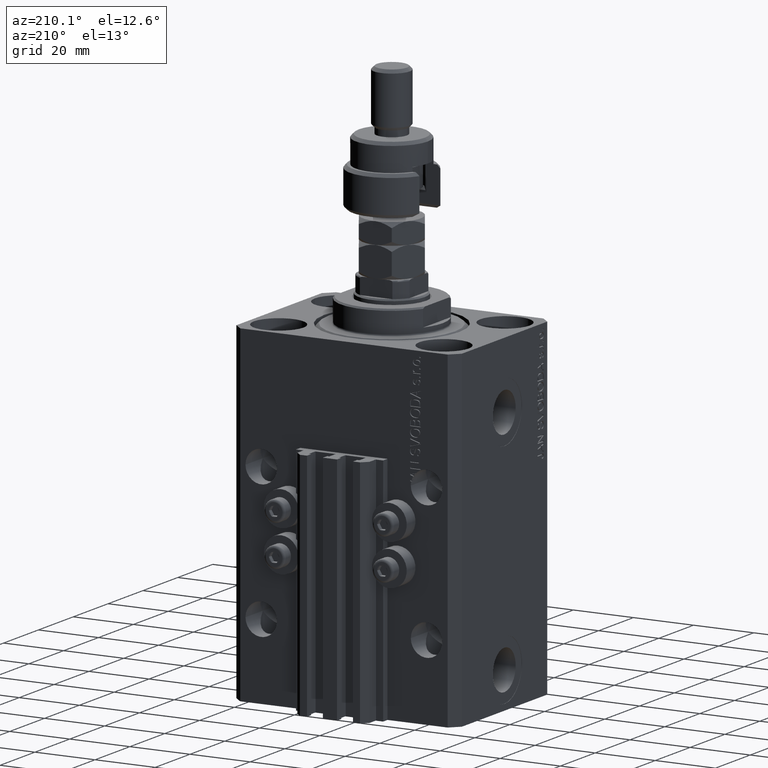
[diagram: clean part render]
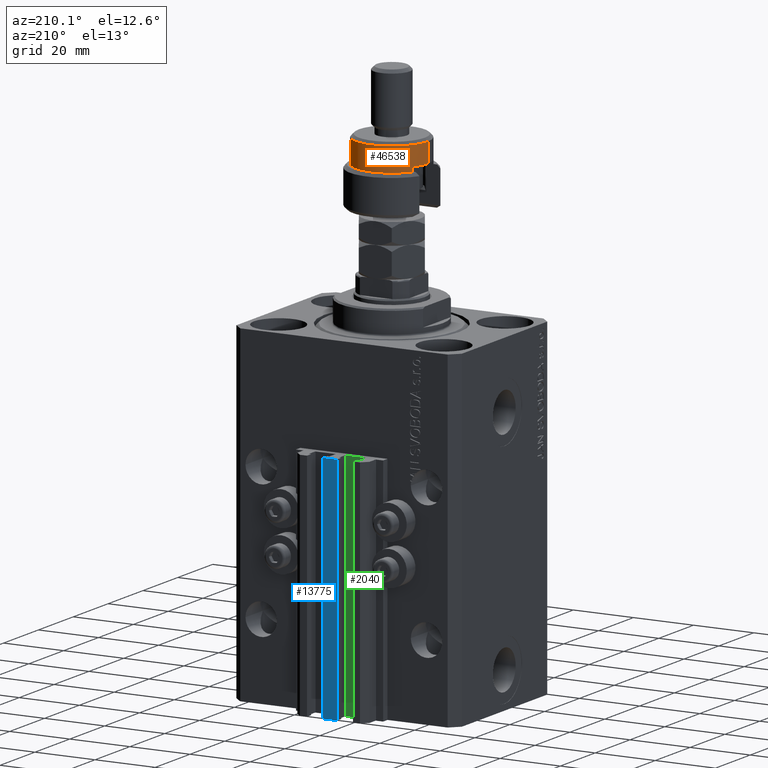
[diagram: same view with three faces highlighted in distinct colors, each labeled with its STEP entity id]
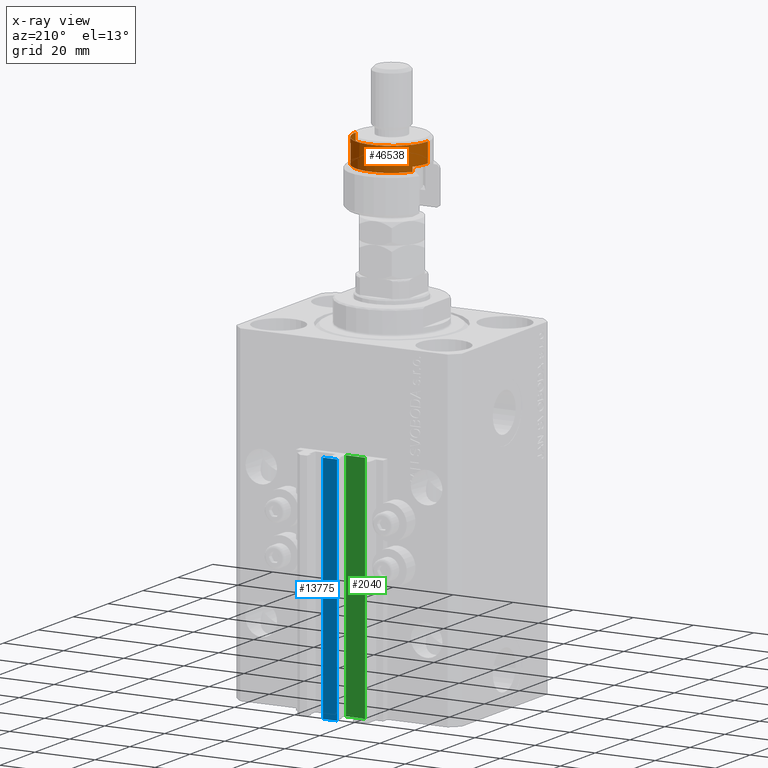
[diagram: x-ray of the same camera — body ghosted, the three highlighted faces saturated]
A machine part, auxiliary view with three faces highlighted in distinct colors.
The next image is the same camera in x-ray (body ghosted, the three faces saturated) — at least one of them is partly hidden behind the body in this view.
Their STEP definitions:

[orange] entity #46538 — the highlighted cylindrical surface (partial cylindrical patch) has radius 12 mm, axis along (-0, -0, -1).
#24 = CARTESIAN_POINT ( 'NONE',  ( 0.000000000000000000, 0.000000000000000000, 20.99999999999998224 ) ) ;
#1229 = EDGE_CURVE ( 'NONE', #25745, #50214, #32743, .T. ) ;
#2160 = CIRCLE ( 'NONE', #45921, 12.00000000000000178 ) ;
#2294 = LINE ( 'NONE', #6590, #25158 ) ;
#3581 = AXIS2_PLACEMENT_3D ( 'NONE', #33004, #29215, #41125 ) ;
#5243 = CARTESIAN_POINT ( 'NONE',  ( -12.00000000000000178, 0.000000000000000000, 22.00000000000000000 ) ) ;
#6590 = CARTESIAN_POINT ( 'NONE',  ( -10.39230484541326760, 6.000000000000000000, 22.00000000000000000 ) ) ;
#6654 = DIRECTION ( 'NONE',  ( 1.000000000000000000, 0.000000000000000000, 0.000000000000000000 ) ) ;
#7684 = DIRECTION ( 'NONE',  ( -0.000000000000000000, -0.000000000000000000, -1.000000000000000000 ) ) ;
#8329 = CARTESIAN_POINT ( 'NONE',  ( 12.00000000000000178, 1.469576158976824144E-15, 22.00000000000000000 ) ) ;
#8613 = DIRECTION ( 'NONE',  ( 1.000000000000000000, 0.000000000000000000, 0.000000000000000000 ) ) ;
#12901 = ORIENTED_EDGE ( 'NONE', *, *, #47578, .T. ) ;
#14238 = AXIS2_PLACEMENT_3D ( 'NONE', #24, #42869, #8613 ) ;
#14798 = VECTOR ( 'NONE', #20963, 1000.000000000000000 ) ;
#15645 = CARTESIAN_POINT ( 'NONE',  ( -12.00000000000000178, 0.000000000000000000, 14.50000000000000000 ) ) ;
#15863 = ORIENTED_EDGE ( 'NONE', *, *, #45617, .T. ) ;
#15888 = AXIS2_PLACEMENT_3D ( 'NONE', #22673, #7684, #26738 ) ;
#15978 = CIRCLE ( 'NONE', #14238, 12.00000000000000178 ) ;
#16027 = VERTEX_POINT ( 'NONE', #30858 ) ;
#17822 = CARTESIAN_POINT ( 'NONE',  ( 0.000000000000000000, 0.000000000000000000, 13.00000000000000000 ) ) ;
#18628 = CYLINDRICAL_SURFACE ( 'NONE', #15888, 12.00000000000000178 ) ;
#19072 = CARTESIAN_POINT ( 'NONE',  ( 12.00000000000000178, 1.469576158976824144E-15, 20.99999999999998224 ) ) ;
#19086 = VERTEX_POINT ( 'NONE', #19072 ) ;
#20963 = DIRECTION ( 'NONE',  ( -0.000000000000000000, -0.000000000000000000, -1.000000000000000000 ) ) ;
#21769 = CARTESIAN_POINT ( 'NONE',  ( -12.00000000000000178, 0.000000000000000000, 20.99999999999998224 ) ) ;
#21788 = EDGE_LOOP ( 'NONE', ( #15863, #40434, #12901, #26220, #25471, #49865 ) ) ;
#22673 = CARTESIAN_POINT ( 'NONE',  ( 0.000000000000000000, 0.000000000000000000, 22.00000000000000000 ) ) ;
#23632 = VERTEX_POINT ( 'NONE', #21769 ) ;
#25158 = VECTOR ( 'NONE', #25873, 1000.000000000000000 ) ;
#25471 = ORIENTED_EDGE ( 'NONE', *, *, #1229, .F. ) ;
#25745 = VERTEX_POINT ( 'NONE', #15645 ) ;
#25873 = DIRECTION ( 'NONE',  ( 0.000000000000000000, 0.000000000000000000, 1.000000000000000000 ) ) ;
#26220 = ORIENTED_EDGE ( 'NONE', *, *, #28922, .T. ) ;
#26738 = DIRECTION ( 'NONE',  ( -1.000000000000000000, 0.000000000000000000, 0.000000000000000000 ) ) ;
#28922 = EDGE_CURVE ( 'NONE', #33144, #50214, #2294, .T. ) ;
#29215 = DIRECTION ( 'NONE',  ( 0.000000000000000000, 0.000000000000000000, -1.000000000000000000 ) ) ;
#30296 = CARTESIAN_POINT ( 'NONE',  ( -10.39230484541326582, 5.999999999999998224, 14.50000000000000000 ) ) ;
#30778 = FACE_OUTER_BOUND ( 'NONE', #21788, .T. ) ;
#30858 = CARTESIAN_POINT ( 'NONE',  ( 12.00000000000000178, 1.469576158976824144E-15, 13.00000000000000000 ) ) ;
#32743 = CIRCLE ( 'NONE', #3581, 12.00000000000000178 ) ;
#33004 = CARTESIAN_POINT ( 'NONE',  ( 0.000000000000000000, 0.000000000000000000, 14.50000000000000000 ) ) ;
#33144 = VERTEX_POINT ( 'NONE', #39250 ) ;
#37680 = EDGE_CURVE ( 'NONE', #23632, #25745, #39980, .T. ) ;
#39250 = CARTESIAN_POINT ( 'NONE',  ( -10.39230484541326760, 6.000000000000000000, 13.00000000000000000 ) ) ;
#39980 = LINE ( 'NONE', #5243, #14798 ) ;
#40434 = ORIENTED_EDGE ( 'NONE', *, *, #43867, .T. ) ;
#41125 = DIRECTION ( 'NONE',  ( -1.000000000000000000, 0.000000000000000000, 0.000000000000000000 ) ) ;
#42577 = DIRECTION ( 'NONE',  ( -0.000000000000000000, -0.000000000000000000, -1.000000000000000000 ) ) ;
#42869 = DIRECTION ( 'NONE',  ( 0.000000000000000000, 0.000000000000000000, -1.000000000000000000 ) ) ;
#43081 = LINE ( 'NONE', #8329, #45095 ) ;
#43867 = EDGE_CURVE ( 'NONE', #19086, #16027, #43081, .T. ) ;
#45095 = VECTOR ( 'NONE', #42577, 1000.000000000000000 ) ;
#45215 = DIRECTION ( 'NONE',  ( 0.000000000000000000, 0.000000000000000000, 1.000000000000000000 ) ) ;
#45617 = EDGE_CURVE ( 'NONE', #23632, #19086, #15978, .T. ) ;
#45921 = AXIS2_PLACEMENT_3D ( 'NONE', #17822, #45215, #6654 ) ;
#46538 = ADVANCED_FACE ( 'NONE', ( #30778 ), #18628, .T. ) ;
#47578 = EDGE_CURVE ( 'NONE', #16027, #33144, #2160, .T. ) ;
#49865 = ORIENTED_EDGE ( 'NONE', *, *, #37680, .F. ) ;
#50214 = VERTEX_POINT ( 'NONE', #30296 ) ;

[blue] entity #13775 — the highlighted planar face has unit normal (0, -1, 0).
#557 = EDGE_LOOP ( 'NONE', ( #4498, #43856, #6159, #34904 ) ) ;
#836 = FACE_OUTER_BOUND ( 'NONE', #557, .T. ) ;
#1918 = DIRECTION ( 'NONE',  ( 0.000000000000000000, 0.000000000000000000, 1.000000000000000000 ) ) ;
#4498 = ORIENTED_EDGE ( 'NONE', *, *, #15255, .T. ) ;
#5481 = VECTOR ( 'NONE', #25299, 1000.000000000000000 ) ;
#6159 = ORIENTED_EDGE ( 'NONE', *, *, #10317, .F. ) ;
#8379 = VERTEX_POINT ( 'NONE', #22627 ) ;
#10317 = EDGE_CURVE ( 'NONE', #8379, #12565, #34490, .T. ) ;
#10708 = VECTOR ( 'NONE', #1918, 1000.000000000000000 ) ;
#11897 = DIRECTION ( 'NONE',  ( 1.000000000000000000, 0.000000000000000000, 0.000000000000000000 ) ) ;
#12565 = VERTEX_POINT ( 'NONE', #13280 ) ;
#13232 = DIRECTION ( 'NONE',  ( 0.000000000000000000, -0.000000000000000000, -1.000000000000000000 ) ) ;
#13280 = CARTESIAN_POINT ( 'NONE',  ( 2.349999999999999645, 35.50000000000001421, -110.0000000000000000 ) ) ;
#13775 = ADVANCED_FACE ( 'NONE', ( #836 ), #16534, .F. ) ;
#15255 = EDGE_CURVE ( 'NONE', #25040, #48240, #21485, .T. ) ;
#16534 = PLANE ( 'NONE',  #19320 ) ;
#18648 = CARTESIAN_POINT ( 'NONE',  ( 2.349999999999999645, 35.50000000000001421, -33.00000000000000000 ) ) ;
#19320 = AXIS2_PLACEMENT_3D ( 'NONE', #24152, #36577, #13232 ) ;
#21485 = LINE ( 'NONE', #44571, #5481 ) ;
#22627 = CARTESIAN_POINT ( 'NONE',  ( -2.350000000000003642, 35.50000000000001421, -110.0000000000000000 ) ) ;
#24152 = CARTESIAN_POINT ( 'NONE',  ( -2.350000000000003642, 35.50000000000001421, -110.0000000000000000 ) ) ;
#24767 = VECTOR ( 'NONE', #33874, 1000.000000000000000 ) ;
#25040 = VERTEX_POINT ( 'NONE', #39912 ) ;
#25244 = LINE ( 'NONE', #29305, #10708 ) ;
#25299 = DIRECTION ( 'NONE',  ( 1.000000000000000000, 0.000000000000000000, 0.000000000000000000 ) ) ;
#26391 = CARTESIAN_POINT ( 'NONE',  ( -2.350000000000003642, 35.50000000000001421, -110.0000000000000000 ) ) ;
#29305 = CARTESIAN_POINT ( 'NONE',  ( -2.350000000000003642, 35.50000000000001421, -110.0000000000000000 ) ) ;
#33874 = DIRECTION ( 'NONE',  ( 0.000000000000000000, 0.000000000000000000, 1.000000000000000000 ) ) ;
#34490 = LINE ( 'NONE', #26391, #39402 ) ;
#34904 = ORIENTED_EDGE ( 'NONE', *, *, #35875, .T. ) ;
#35875 = EDGE_CURVE ( 'NONE', #8379, #25040, #25244, .T. ) ;
#36577 = DIRECTION ( 'NONE',  ( 0.000000000000000000, -1.000000000000000000, 0.000000000000000000 ) ) ;
#39402 = VECTOR ( 'NONE', #11897, 1000.000000000000000 ) ;
#39912 = CARTESIAN_POINT ( 'NONE',  ( -2.350000000000003642, 35.50000000000001421, -33.00000000000000000 ) ) ;
#41234 = CARTESIAN_POINT ( 'NONE',  ( 2.349999999999999645, 35.50000000000001421, -110.0000000000000000 ) ) ;
#41485 = LINE ( 'NONE', #41234, #24767 ) ;
#43856 = ORIENTED_EDGE ( 'NONE', *, *, #45092, .F. ) ;
#44571 = CARTESIAN_POINT ( 'NONE',  ( -2.350000000000003642, 35.50000000000001421, -33.00000000000000000 ) ) ;
#45092 = EDGE_CURVE ( 'NONE', #12565, #48240, #41485, .T. ) ;
#48240 = VERTEX_POINT ( 'NONE', #18648 ) ;

[green] entity #2040 — the highlighted planar face has unit normal (0, 1, 0).
#2040 = ADVANCED_FACE ( 'NONE', ( #25283 ), #25790, .T. ) ;
#2712 = DIRECTION ( 'NONE',  ( 0.000000000000000000, 1.000000000000000000, -0.000000000000000000 ) ) ;
#2806 = EDGE_CURVE ( 'NONE', #35086, #25512, #41276, .T. ) ;
#4528 = CARTESIAN_POINT ( 'NONE',  ( -1.800000000000000933, 29.50000000000000355, -110.0000000000000000 ) ) ;
#6504 = CARTESIAN_POINT ( 'NONE',  ( -1.800000000000000933, 29.50000000000000355, -110.0000000000000000 ) ) ;
#6763 = VECTOR ( 'NONE', #29865, 1000.000000000000000 ) ;
#8619 = VECTOR ( 'NONE', #40766, 1000.000000000000000 ) ;
#10302 = CARTESIAN_POINT ( 'NONE',  ( -8.199999999999997513, 29.50000000000000355, -33.00000000000000000 ) ) ;
#12647 = ORIENTED_EDGE ( 'NONE', *, *, #46965, .F. ) ;
#17886 = CARTESIAN_POINT ( 'NONE',  ( -1.800000000000000933, 29.50000000000000355, -110.0000000000000000 ) ) ;
#18179 = DIRECTION ( 'NONE',  ( 0.000000000000000000, 0.000000000000000000, 1.000000000000000000 ) ) ;
#22028 = ORIENTED_EDGE ( 'NONE', *, *, #2806, .F. ) ;
#23448 = VECTOR ( 'NONE', #25088, 1000.000000000000000 ) ;
#24310 = LINE ( 'NONE', #4528, #30545 ) ;
#25088 = DIRECTION ( 'NONE',  ( 0.000000000000000000, 0.000000000000000000, 1.000000000000000000 ) ) ;
#25283 = FACE_OUTER_BOUND ( 'NONE', #30507, .T. ) ;
#25512 = VERTEX_POINT ( 'NONE', #10302 ) ;
#25790 = PLANE ( 'NONE',  #47353 ) ;
#26826 = EDGE_CURVE ( 'NONE', #33683, #25512, #38196, .T. ) ;
#27629 = DIRECTION ( 'NONE',  ( -1.000000000000000000, 0.000000000000000000, 0.000000000000000000 ) ) ;
#27786 = CARTESIAN_POINT ( 'NONE',  ( -1.800000000000000933, 29.50000000000000355, -33.00000000000000000 ) ) ;
#28364 = LINE ( 'NONE', #43818, #8619 ) ;
#29865 = DIRECTION ( 'NONE',  ( -1.000000000000000000, 0.000000000000000000, 0.000000000000000000 ) ) ;
#30335 = CARTESIAN_POINT ( 'NONE',  ( -8.199999999999997513, 29.50000000000000355, -110.0000000000000000 ) ) ;
#30507 = EDGE_LOOP ( 'NONE', ( #22028, #12647, #39845, #32244 ) ) ;
#30545 = VECTOR ( 'NONE', #27629, 1000.000000000000000 ) ;
#32244 = ORIENTED_EDGE ( 'NONE', *, *, #26826, .T. ) ;
#33683 = VERTEX_POINT ( 'NONE', #44183 ) ;
#35086 = VERTEX_POINT ( 'NONE', #27786 ) ;
#35946 = VERTEX_POINT ( 'NONE', #17886 ) ;
#38196 = LINE ( 'NONE', #30335, #23448 ) ;
#39845 = ORIENTED_EDGE ( 'NONE', *, *, #44542, .T. ) ;
#40766 = DIRECTION ( 'NONE',  ( 0.000000000000000000, 0.000000000000000000, 1.000000000000000000 ) ) ;
#41276 = LINE ( 'NONE', #49649, #6763 ) ;
#43818 = CARTESIAN_POINT ( 'NONE',  ( -1.800000000000000933, 29.50000000000000355, -110.0000000000000000 ) ) ;
#44183 = CARTESIAN_POINT ( 'NONE',  ( -8.199999999999997513, 29.50000000000000355, -110.0000000000000000 ) ) ;
#44542 = EDGE_CURVE ( 'NONE', #35946, #33683, #24310, .T. ) ;
#46965 = EDGE_CURVE ( 'NONE', #35946, #35086, #28364, .T. ) ;
#47353 = AXIS2_PLACEMENT_3D ( 'NONE', #6504, #2712, #18179 ) ;
#49649 = CARTESIAN_POINT ( 'NONE',  ( -1.800000000000000933, 29.50000000000000355, -33.00000000000000000 ) ) ;